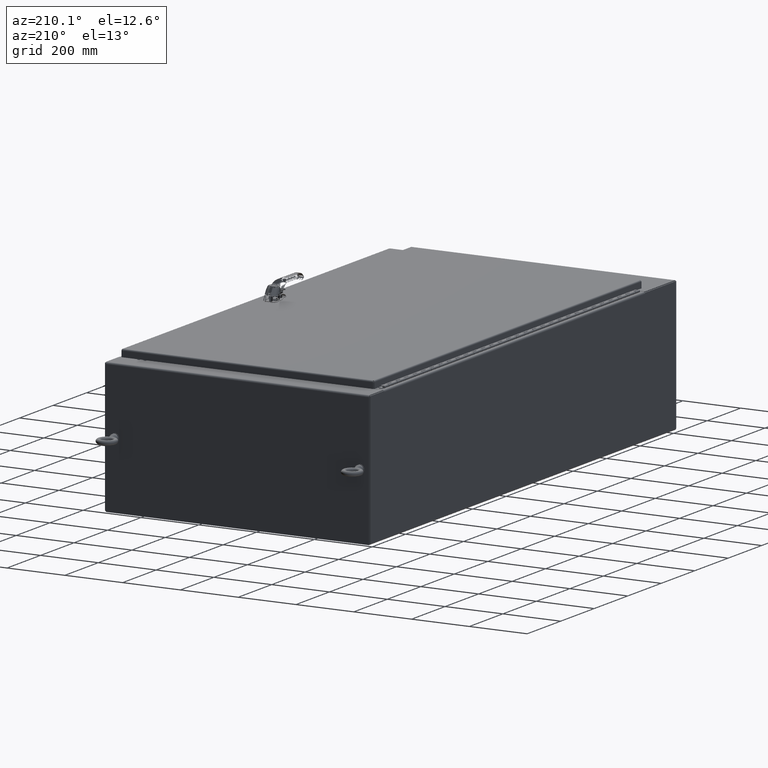
[diagram: clean part render]
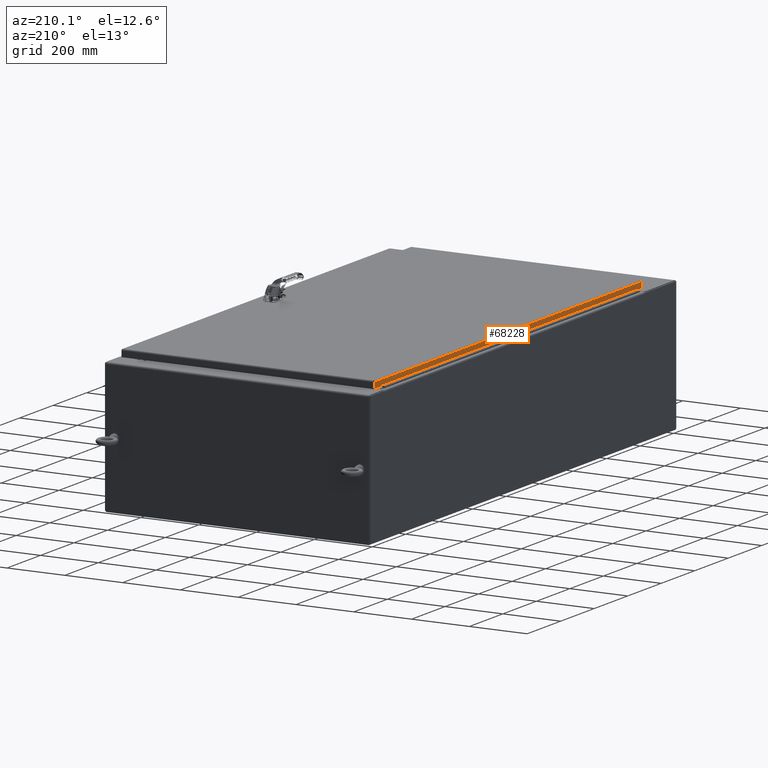
[diagram: same view with one face highlighted and labeled with its STEP entity id]
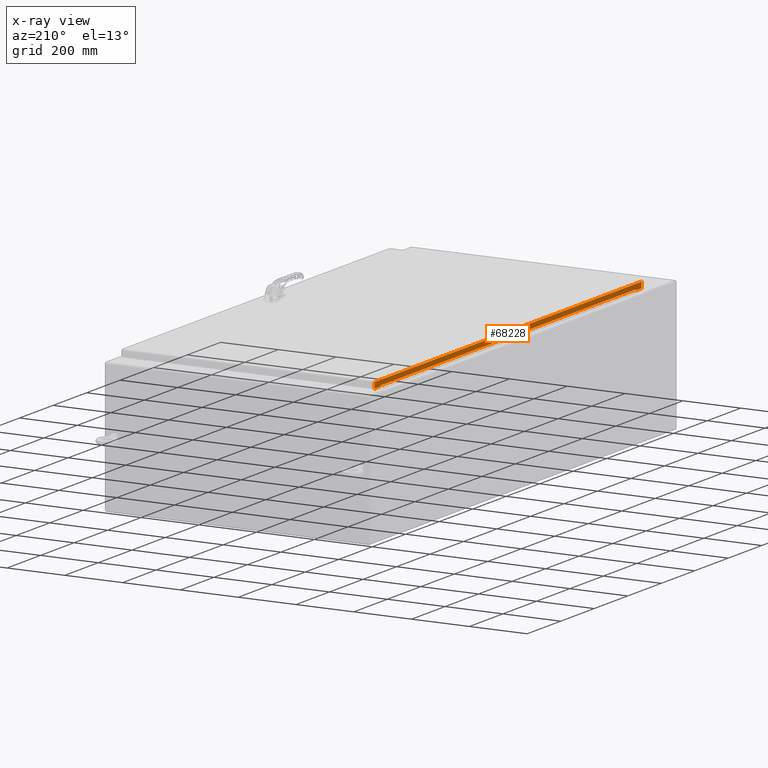
[diagram: x-ray of the same camera — body ghosted, the highlighted face saturated]
A machine part, auxiliary view. The second image highlights one B-rep face of the part: STEP entity #68228.
The next image is the same camera in x-ray: the body ghosted, the highlighted face saturated — about 0% of this face is hidden behind the body in this view.
In plain terms, the highlighted planar face has unit normal (-1, 0, -0).
Its self-contained STEP definition (entity closure, byte-faithful):
#9306=PLANE('',#72086);
#10497=FACE_OUTER_BOUND('',#13449,.T.);
#13449=EDGE_LOOP('',(#50829,#50830,#50831,#50832,#50833,#50834,#50835,#50836));
#20267=LINE('',#96839,#25385);
#20271=LINE('',#96847,#25389);
#20274=LINE('',#96853,#25392);
#20277=LINE('',#96859,#25395);
#20278=LINE('',#96861,#25396);
#20279=LINE('',#96863,#25397);
#20280=LINE('',#96865,#25398);
#20281=LINE('',#96866,#25399);
#25385=VECTOR('',#78984,0.393700787401575);
#25389=VECTOR('',#78990,0.393700787401575);
#25392=VECTOR('',#78995,0.393700787401575);
#25395=VECTOR('',#79000,0.393700787401575);
#25396=VECTOR('',#79001,0.393700787401575);
#25397=VECTOR('',#79002,0.393700787401575);
#25398=VECTOR('',#79003,0.393700787401575);
#25399=VECTOR('',#79004,0.393700787401575);
#30424=VERTEX_POINT('',#96837);
#30425=VERTEX_POINT('',#96838);
#30428=VERTEX_POINT('',#96846);
#30430=VERTEX_POINT('',#96852);
#30432=VERTEX_POINT('',#96858);
#30433=VERTEX_POINT('',#96860);
#30434=VERTEX_POINT('',#96862);
#30435=VERTEX_POINT('',#96864);
#39838=EDGE_CURVE('',#30424,#30425,#20267,.T.);
#39842=EDGE_CURVE('',#30428,#30424,#20271,.T.);
#39845=EDGE_CURVE('',#30430,#30428,#20274,.T.);
#39848=EDGE_CURVE('',#30432,#30425,#20277,.T.);
#39849=EDGE_CURVE('',#30433,#30432,#20278,.T.);
#39850=EDGE_CURVE('',#30433,#30434,#20279,.T.);
#39851=EDGE_CURVE('',#30435,#30434,#20280,.T.);
#39852=EDGE_CURVE('',#30430,#30435,#20281,.T.);
#50829=ORIENTED_EDGE('',*,*,#39845,.T.);
#50830=ORIENTED_EDGE('',*,*,#39842,.T.);
#50831=ORIENTED_EDGE('',*,*,#39838,.T.);
#50832=ORIENTED_EDGE('',*,*,#39848,.F.);
#50833=ORIENTED_EDGE('',*,*,#39849,.F.);
#50834=ORIENTED_EDGE('',*,*,#39850,.T.);
#50835=ORIENTED_EDGE('',*,*,#39851,.F.);
#50836=ORIENTED_EDGE('',*,*,#39852,.F.);
#68228=ADVANCED_FACE('',(#10497),#9306,.T.);
#72086=AXIS2_PLACEMENT_3D('',#96857,#78998,#78999);
#78984=DIRECTION('',(-5.41264691367305E-15,1.75511786224437E-15,-1.));
#78990=DIRECTION('',(-1.16385614632646E-16,-1.,-5.10771766856385E-16));
#78995=DIRECTION('',(5.41264691367305E-15,-3.56411689488195E-16,1.));
#78998=DIRECTION('center_axis',(-1.,1.16385614632644E-16,5.41264691367305E-15));
#78999=DIRECTION('ref_axis',(5.41264691367305E-15,4.44033705636856E-17,
1.));
#79000=DIRECTION('',(1.33506292935736E-16,1.,3.56559780110533E-16));
#79001=DIRECTION('',(-5.39030285815812E-15,2.40356057059527E-31,-1.));
#79002=DIRECTION('',(1.16385614632644E-16,1.,-3.88006095941538E-31));
#79003=DIRECTION('',(5.39030285815812E-15,-2.40356057059527E-31,1.));
#79004=DIRECTION('',(1.33506292935736E-16,1.,3.56559780110533E-16));
#96837=CARTESIAN_POINT('',(-17.21875,-30.015625,-0.771000000000019));
#96838=CARTESIAN_POINT('',(-17.21875,-30.015625,-0.896000000000013));
#96839=CARTESIAN_POINT('',(-17.21875,-30.015625,-0.581113263544015));
#96846=CARTESIAN_POINT('',(-17.21875,30.015625,-0.770999999999988));
#96847=CARTESIAN_POINT('',(-17.21875,15.0078125,-0.770999999999996));
#96852=CARTESIAN_POINT('',(-17.21875,30.015625,-0.895999999999996));
#96853=CARTESIAN_POINT('',(-17.21875,30.015625,-0.643613263543972));
#96857=CARTESIAN_POINT('Origin',(-17.21875,-8.87878685380409E-16,-0.391226527087959));
#96858=CARTESIAN_POINT('',(-17.21875,-31.3952928932188,-0.89600000000002));
#96859=CARTESIAN_POINT('',(-17.21875,-31.3952928932188,-0.89600000000002));
#96860=CARTESIAN_POINT('',(-17.21875,-31.3952928932188,-0.0937500000000182));
#96861=CARTESIAN_POINT('',(-17.21875,-31.3952928932188,-0.093750000000021));
#96862=CARTESIAN_POINT('',(-17.21875,31.3952928932188,-0.0937499999999959));
#96863=CARTESIAN_POINT('',(-17.21875,-3.23462188200568E-15,-0.0937499999999987));
#96864=CARTESIAN_POINT('',(-17.21875,31.3952928932188,-0.895999999999995));
#96865=CARTESIAN_POINT('',(-17.21875,31.3952928932188,-0.0937499999999959));
#96866=CARTESIAN_POINT('',(-17.21875,-31.3952928932188,-0.89600000000002));